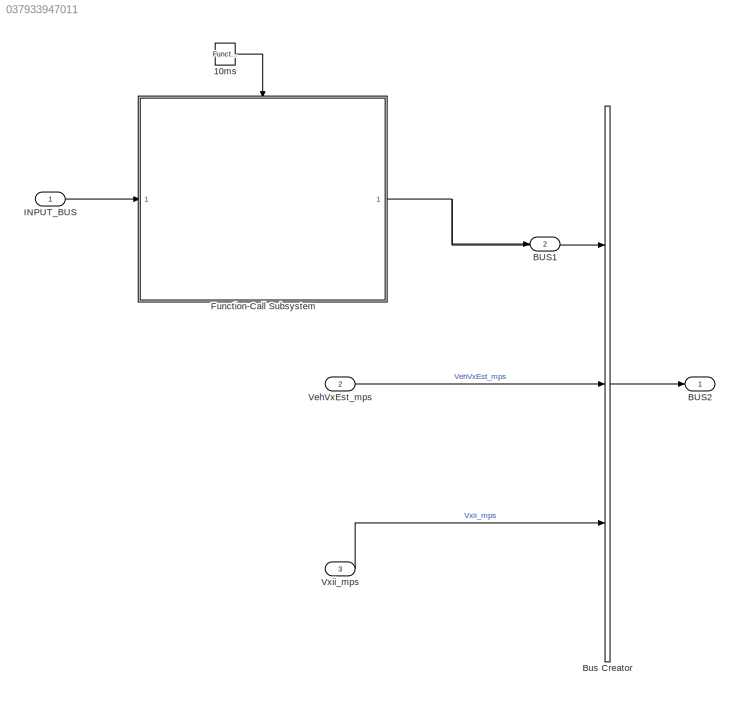
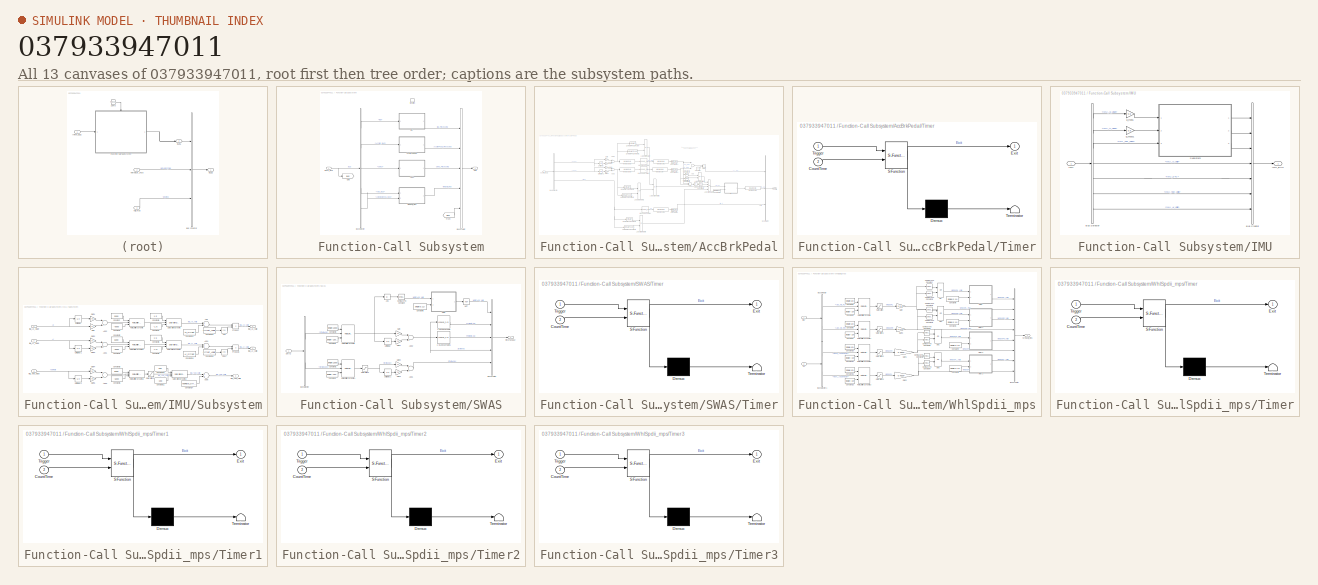
[diagram: thumbnail index - all 13 canvases of the model, root first then tree order]
MODEL slx_037933947011
KIND model
CONFIG AbsTol = auto
CONFIG EnableMultiTasking = off
CONFIG FixedStep = auto
CONFIG MaxStep = auto
CONFIG MinStep = auto
CONFIG RelTol = 1e-3
CONFIG SampleTimeConstraint = Unconstrained
CONFIG Solver = VariableStepAuto
CONFIG SolverName = VariableStepAuto
CONFIG StartTime = 0.0
CONFIG StopTime = 10.0
BLOCK [Reference] 10ms  REF=simulink/Ports &
Subsystems/Function-Call
Generator
  Ports = [0, 1]
  SourceBlock = simulink/Ports &\nSubsystems/Function-Call\nGenerator
  SourceProductBaseCode = SL
  SourceProductName = Simulink
  SourceType = Function-Call Generator
BLOCK [Outport] BUS1
  IconDisplay = Port number
  Port = 2
  VectorParamsAs1DForOutWhenUnconnected = off
BLOCK [Outport] BUS2
  IconDisplay = Port number
  VectorParamsAs1DForOutWhenUnconnected = off
BLOCK [BusCreator] Bus Creator
  DisplayOption = bar
  InheritFromInputs = on
  Inputs = 3
  Ports = [3, 1]
BLOCK [SubSystem] Function-Call Subsystem
  Ports = [1, 1, 0, 1]
  RequestExecContextInheritance = off
  TreatAsAtomicUnit = on
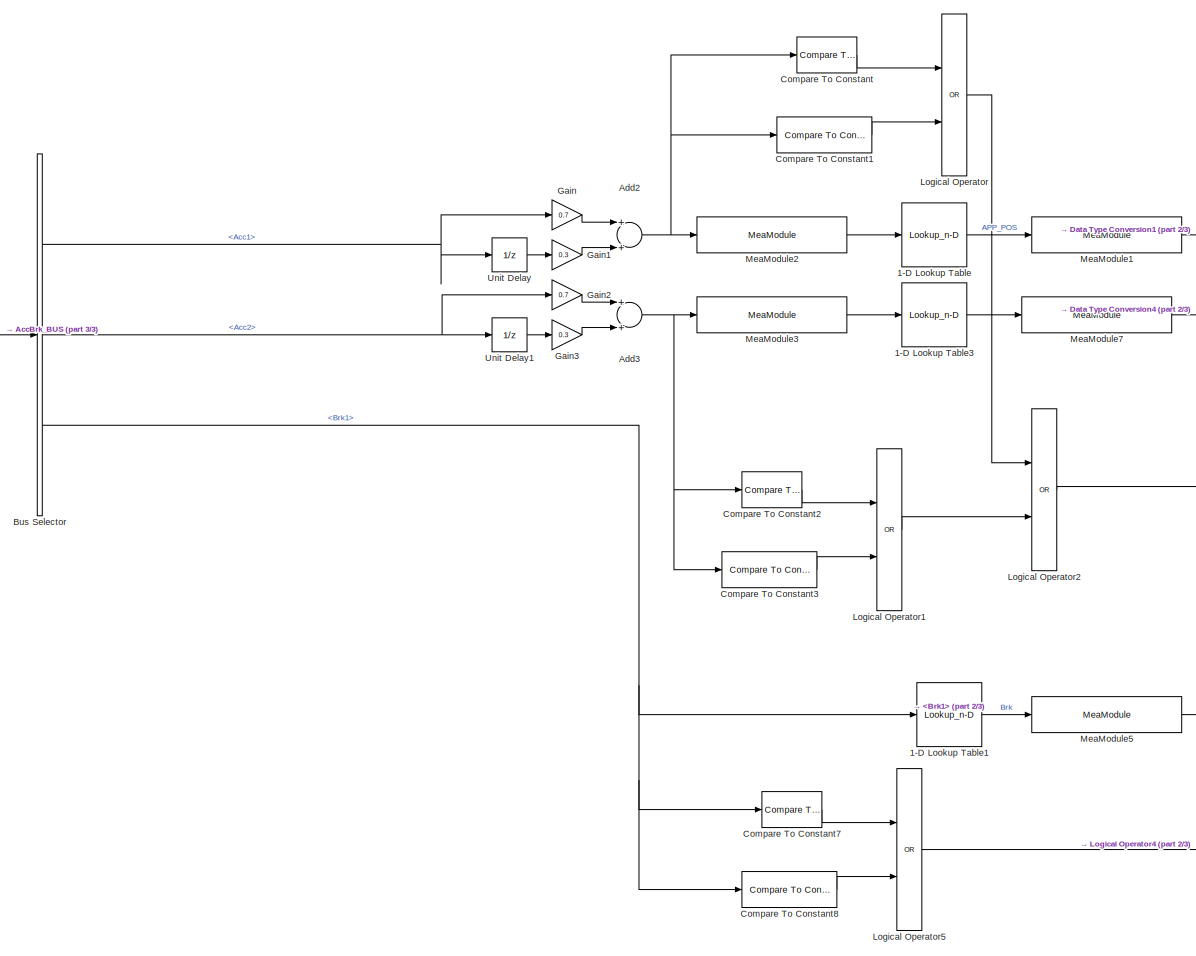
[diagram: Function-Call Subsystem/AccBrkPedal - part 1/3, left side, full height]
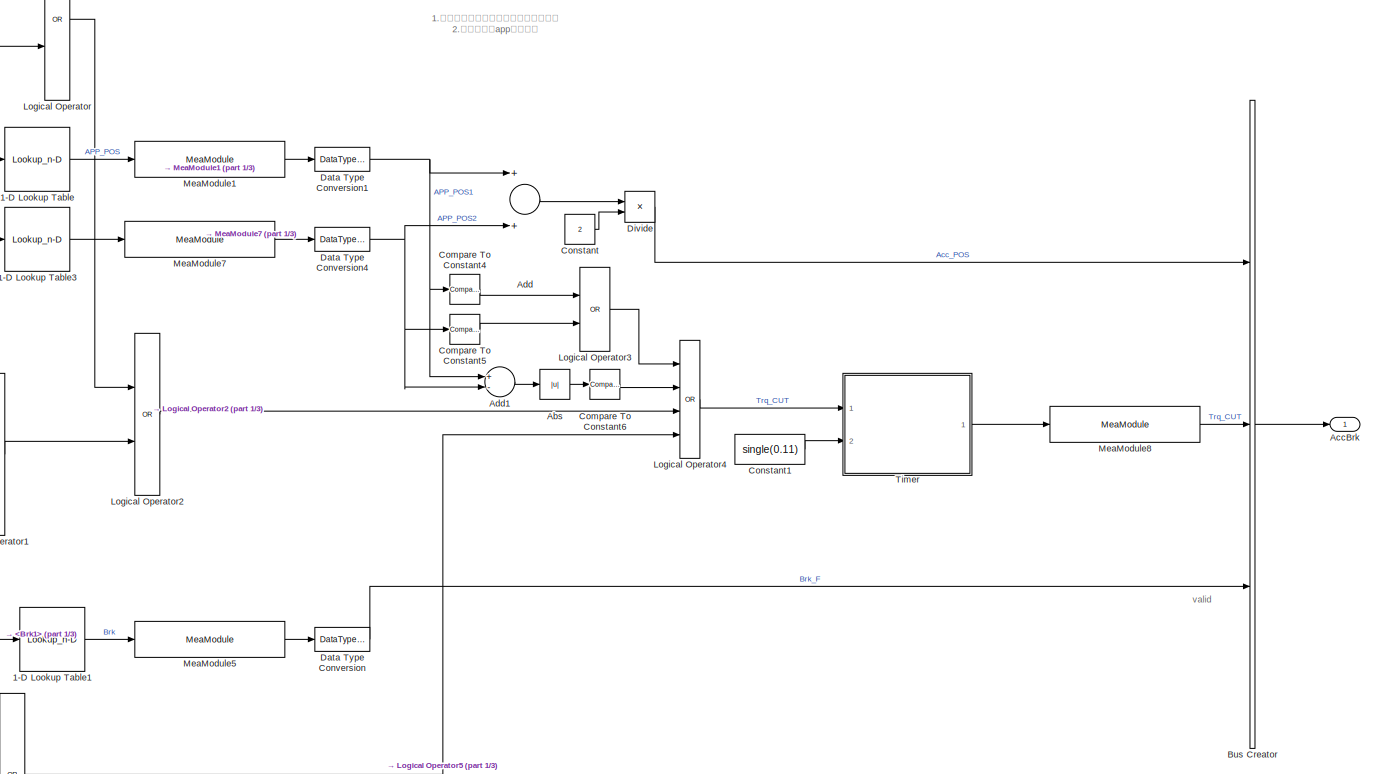
[diagram: Function-Call Subsystem/AccBrkPedal - part 2/3, right side, full height]
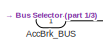
[diagram: Function-Call Subsystem/AccBrkPedal - part 3/3, middle left region]
BLOCK [SubSystem] Function-Call Subsystem/AccBrkPedal
  Ports = [1, 1]
  RequestExecContextInheritance = off
BLOCK [Lookup_n-D] Function-Call Subsystem/AccBrkPedal/1-D Lookup Table
  BreakpointsForDimension1 = single([1330,1590]);
  BreakpointsForDimension1DataTypeStr = single
  ExtrapMethod = Clip
  InternalRulePriority = Speed
  NumberOfTableDimensions = 1
  Ports = [1, 1]
  RndMeth = Simplest
  Table = single([0,100]);
  TableDataTypeStr = single
BLOCK [Lookup_n-D] Function-Call Subsystem/AccBrkPedal/1-D Lookup Table1
  BreakpointsForDimension1 = single([500,4500]);
  BreakpointsForDimension1DataTypeStr = single
  ExtrapMethod = Clip
  InternalRulePriority = Speed
  NumberOfTableDimensions = 1
  Ports = [1, 1]
  RndMeth = Simplest
  Table = single([0,10000]);
  TableDataTypeStr = single
BLOCK [Lookup_n-D] Function-Call Subsystem/AccBrkPedal/1-D Lookup Table3
  BreakpointsForDimension1 = single([2324,2600]);
  BreakpointsForDimension1DataTypeStr = single
  ExtrapMethod = Clip
  InternalRulePriority = Speed
  NumberOfTableDimensions = 1
  Ports = [1, 1]
  RndMeth = Simplest
  Table = single([0,100]);
  TableDataTypeStr = single
BLOCK [Abs] Function-Call Subsystem/AccBrkPedal/Abs
  SaturateOnIntegerOverflow = off
BLOCK [Outport] Function-Call Subsystem/AccBrkPedal/AccBrk
  IconDisplay = Port number
  VectorParamsAs1DForOutWhenUnconnected = off
BLOCK [Inport] Function-Call Subsystem/AccBrkPedal/AccBrk_BUS
  IconDisplay = Port number
BLOCK [Sum] Function-Call Subsystem/AccBrkPedal/Add
  InputSameDT = off
  OutDataTypeStr = Inherit: Inherit via internal rule
  Ports = [2, 1]
  SaturateOnIntegerOverflow = off
BLOCK [Sum] Function-Call Subsystem/AccBrkPedal/Add1
  InputSameDT = off
  Inputs = +-
  OutDataTypeStr = Inherit: Inherit via internal rule
  Ports = [2, 1]
  SaturateOnIntegerOverflow = off
BLOCK [Sum] Function-Call Subsystem/AccBrkPedal/Add2
  InputSameDT = off
  OutDataTypeStr = Inherit: Inherit via internal rule
  Ports = [2, 1]
  SaturateOnIntegerOverflow = off
BLOCK [Sum] Function-Call Subsystem/AccBrkPedal/Add3
  InputSameDT = off
  OutDataTypeStr = Inherit: Inherit via internal rule
  Ports = [2, 1]
  SaturateOnIntegerOverflow = off
BLOCK [BusCreator] Function-Call Subsystem/AccBrkPedal/Bus Creator
  DisplayOption = bar
  InheritFromInputs = on
  Inputs = 3
  Ports = [3, 1]
BLOCK [BusSelector] Function-Call Subsystem/AccBrkPedal/Bus Selector
  OutputAsBus = off
  OutputSignals = Acc1,Acc2,Brk1
  Ports = [1, 3]
BLOCK [Reference] Function-Call Subsystem/AccBrkPedal/Compare To Constant  REF=simulink/Logic and Bit
Operations/Compare
To Constant
  Ports = [1, 1]
  SourceBlock = simulink/Logic and Bit\nOperations/Compare\nTo Constant
  SourceProductBaseCode = SL
  SourceProductName = Simulink
  SourceType = Compare To Constant
BLOCK [Reference] Function-Call Subsystem/AccBrkPedal/Compare To Constant1  REF=simulink/Logic and Bit
Operations/Compare
To Constant
  Ports = [1, 1]
  SourceBlock = simulink/Logic and Bit\nOperations/Compare\nTo Constant
  SourceProductBaseCode = SL
  SourceProductName = Simulink
  SourceType = Compare To Constant
BLOCK [Reference] Function-Call Subsystem/AccBrkPedal/Compare To Constant2  REF=simulink/Logic and Bit
Operations/Compare
To Constant
  Ports = [1, 1]
  SourceBlock = simulink/Logic and Bit\nOperations/Compare\nTo Constant
  SourceProductBaseCode = SL
  SourceProductName = Simulink
  SourceType = Compare To Constant
BLOCK [Reference] Function-Call Subsystem/AccBrkPedal/Compare To Constant3  REF=simulink/Logic and Bit
Operations/Compare
To Constant
  Ports = [1, 1]
  SourceBlock = simulink/Logic and Bit\nOperations/Compare\nTo Constant
  SourceProductBaseCode = SL
  SourceProductName = Simulink
  SourceType = Compare To Constant
BLOCK [Reference] Function-Call Subsystem/AccBrkPedal/Compare To Constant4  REF=simulink/Logic and Bit
Operations/Compare
To Constant
  Ports = [1, 1]
  SourceBlock = simulink/Logic and Bit\nOperations/Compare\nTo Constant
  SourceProductBaseCode = SL
  SourceProductName = Simulink
  SourceType = Compare To Constant
BLOCK [Reference] Function-Call Subsystem/AccBrkPedal/Compare To Constant5  REF=simulink/Logic and Bit
Operations/Compare
To Constant
  Ports = [1, 1]
  SourceBlock = simulink/Logic and Bit\nOperations/Compare\nTo Constant
  SourceProductBaseCode = SL
  SourceProductName = Simulink
  SourceType = Compare To Constant
BLOCK [Reference] Function-Call Subsystem/AccBrkPedal/Compare To Constant6  REF=simulink/Logic and Bit
Operations/Compare
To Constant
  Ports = [1, 1]
  SourceBlock = simulink/Logic and Bit\nOperations/Compare\nTo Constant
  SourceProductBaseCode = SL
  SourceProductName = Simulink
  SourceType = Compare To Constant
BLOCK [Reference] Function-Call Subsystem/AccBrkPedal/Compare To Constant7  REF=simulink/Logic and Bit
Operations/Compare
To Constant
  Ports = [1, 1]
  SourceBlock = simulink/Logic and Bit\nOperations/Compare\nTo Constant
  SourceProductBaseCode = SL
  SourceProductName = Simulink
  SourceType = Compare To Constant
BLOCK [Reference] Function-Call Subsystem/AccBrkPedal/Compare To Constant8  REF=simulink/Logic and Bit
Operations/Compare
To Constant
  Ports = [1, 1]
  SourceBlock = simulink/Logic and Bit\nOperations/Compare\nTo Constant
  SourceProductBaseCode = SL
  SourceProductName = Simulink
  SourceType = Compare To Constant
BLOCK [Constant] Function-Call Subsystem/AccBrkPedal/Constant
  Value = 2
BLOCK [Constant] Function-Call Subsystem/AccBrkPedal/Constant1
  Value = single(0.11)
BLOCK [DataTypeConversion] Function-Call Subsystem/AccBrkPedal/Data Type Conversion
  OutDataTypeStr = single
  RndMeth = Floor
  SaturateOnIntegerOverflow = off
BLOCK [DataTypeConversion] Function-Call Subsystem/AccBrkPedal/Data Type Conversion1
  OutDataTypeStr = single
  RndMeth = Floor
  SaturateOnIntegerOverflow = off
BLOCK [DataTypeConversion] Function-Call Subsystem/AccBrkPedal/Data Type Conversion4
  OutDataTypeStr = single
  RndMeth = Floor
  SaturateOnIntegerOverflow = off
BLOCK [Product] Function-Call Subsystem/AccBrkPedal/Divide
  InputSameDT = off
  Inputs = */
  OutDataTypeStr = single
  Ports = [2, 1]
  RndMeth = Floor
  SaturateOnIntegerOverflow = off
BLOCK [Gain] Function-Call Subsystem/AccBrkPedal/Gain
  Gain = 0.7
  OutDataTypeStr = Inherit: Inherit via internal rule
  ParamDataTypeStr = Inherit: Inherit via internal rule
  SaturateOnIntegerOverflow = off
BLOCK [Gain] Function-Call Subsystem/AccBrkPedal/Gain1
  Gain = 0.3
  OutDataTypeStr = Inherit: Inherit via internal rule
  ParamDataTypeStr = Inherit: Inherit via internal rule
  SaturateOnIntegerOverflow = off
BLOCK [Gain] Function-Call Subsystem/AccBrkPedal/Gain2
  Gain = 0.7
  OutDataTypeStr = Inherit: Inherit via internal rule
  ParamDataTypeStr = Inherit: Inherit via internal rule
  SaturateOnIntegerOverflow = off
BLOCK [Gain] Function-Call Subsystem/AccBrkPedal/Gain3
  Gain = 0.3
  OutDataTypeStr = Inherit: Inherit via internal rule
  ParamDataTypeStr = Inherit: Inherit via internal rule
  SaturateOnIntegerOverflow = off
BLOCK [Logic] Function-Call Subsystem/AccBrkPedal/Logical Operator
  AllPortsSameDT = off
  Operator = OR
  OutDataTypeStr = boolean
  Ports = [2, 1]
BLOCK [Logic] Function-Call Subsystem/AccBrkPedal/Logical Operator1
  AllPortsSameDT = off
  Operator = OR
  OutDataTypeStr = boolean
  Ports = [2, 1]
BLOCK [Logic] Function-Call Subsystem/AccBrkPedal/Logical Operator2
  AllPortsSameDT = off
  Operator = OR
  OutDataTypeStr = boolean
  Ports = [2, 1]
BLOCK [Logic] Function-Call Subsystem/AccBrkPedal/Logical Operator3
  AllPortsSameDT = off
  Operator = OR
  OutDataTypeStr = boolean
  Ports = [2, 1]
BLOCK [Logic] Function-Call Subsystem/AccBrkPedal/Logical Operator4
  AllPortsSameDT = off
  Inputs = 4
  Operator = OR
  OutDataTypeStr = boolean
  Ports = [4, 1]
BLOCK [Logic] Function-Call Subsystem/AccBrkPedal/Logical Operator5
  AllPortsSameDT = off
  Operator = OR
  OutDataTypeStr = boolean
  Ports = [2, 1]
BLOCK [Reference] Function-Call Subsystem/AccBrkPedal/MeaModule1  REF=ec5744lib/RapidECU_U3/07Calibration/MeaModule
  Ports = [1, 1]
  SourceBlock = ec5744lib/RapidECU_U3/07Calibration/MeaModule
  SourceProductName = ECUCoder for MPC5744
  SourceType = Measurement Module
BLOCK [Reference] Function-Call Subsystem/AccBrkPedal/MeaModule2  REF=ec5744lib/RapidECU_U3/07Calibration/MeaModule
  Ports = [1, 1]
  SourceBlock = ec5744lib/RapidECU_U3/07Calibration/MeaModule
  SourceProductName = ECUCoder for MPC5744
  SourceType = Measurement Module
BLOCK [Reference] Function-Call Subsystem/AccBrkPedal/MeaModule3  REF=ec5744lib/RapidECU_U3/07Calibration/MeaModule
  Ports = [1, 1]
  SourceBlock = ec5744lib/RapidECU_U3/07Calibration/MeaModule
  SourceProductName = ECUCoder for MPC5744
  SourceType = Measurement Module
BLOCK [Reference] Function-Call Subsystem/AccBrkPedal/MeaModule5  REF=ec5744lib/RapidECU_U3/07Calibration/MeaModule
  Ports = [1, 1]
  SourceBlock = ec5744lib/RapidECU_U3/07Calibration/MeaModule
  SourceProductName = ECUCoder for MPC5744
  SourceType = Measurement Module
BLOCK [Reference] Function-Call Subsystem/AccBrkPedal/MeaModule7  REF=ec5744lib/RapidECU_U3/07Calibration/MeaModule
  Ports = [1, 1]
  SourceBlock = ec5744lib/RapidECU_U3/07Calibration/MeaModule
  SourceProductName = ECUCoder for MPC5744
  SourceType = Measurement Module
BLOCK [Reference] Function-Call Subsystem/AccBrkPedal/MeaModule8  REF=ec5744lib/RapidECU_U3/07Calibration/MeaModule
  Ports = [1, 1]
  SourceBlock = ec5744lib/RapidECU_U3/07Calibration/MeaModule
  SourceProductName = ECUCoder for MPC5744
  SourceType = Measurement Module
BLOCK [SubSystem] Function-Call Subsystem/AccBrkPedal/Timer
  ErrorFcn = Stateflow.Translate.translate
  PermitHierarchicalResolution = ExplicitOnly
  Ports = [2, 1]
  RequestExecContextInheritance = off
  SFBlockType = Chart
  TreatAsAtomicUnit = on
BLOCK [Demux] Function-Call Subsystem/AccBrkPedal/Timer/ Demux 
  Outputs = 1
  Ports = [1, 1]
BLOCK [S-Function] Function-Call Subsystem/AccBrkPedal/Timer/ SFunction 
  EnableBusSupport = on
  FunctionName = sf_sfun
  Parameters = 0
  PortCounts = [2 2]
  Ports = [2, 2]
  SFcnIsStateOwnerBlock = off
  SFunctionDeploymentMode = off
  Tag = Stateflow S-Function 3
BLOCK [Terminator] Function-Call Subsystem/AccBrkPedal/Timer/ Terminator 
BLOCK [Inport] Function-Call Subsystem/AccBrkPedal/Timer/CountTime
  IconDisplay = Port number
  Port = 2
BLOCK [Outport] Function-Call Subsystem/AccBrkPedal/Timer/Exit
  IconDisplay = Port number
BLOCK [Inport] Function-Call Subsystem/AccBrkPedal/Timer/Trigger
  IconDisplay = Port number
BLOCK [UnitDelay] Function-Call Subsystem/AccBrkPedal/Unit Delay
  HasFrameUpgradeWarning = on
  SampleTime = -1
BLOCK [UnitDelay] Function-Call Subsystem/AccBrkPedal/Unit Delay1
  HasFrameUpgradeWarning = on
  SampleTime = -1
BLOCK [BusCreator] Function-Call Subsystem/Bus Creator
  DisplayOption = bar
  InheritFromInputs = on
  Inputs = 5
  Ports = [5, 1]
BLOCK [BusSelector] Function-Call Subsystem/Bus Selector
  OutputAsBus = off
  OutputSignals = IMU,AccBrk_BUS,SWAS,ABS_BUS,AMKMCUtoVCU_BUS
  Ports = [1, 5]
BLOCK [From] Function-Call Subsystem/From
  GotoTag = BUS
BLOCK [Goto] Function-Call Subsystem/Goto
  GotoTag = BUS
BLOCK [SubSystem] Function-Call Subsystem/IMU
  Ports = [1, 1]
  RequestExecContextInheritance = off
BLOCK [BusCreator] Function-Call Subsystem/IMU/Bus Creator
  DisplayOption = bar
  InheritFromInputs = on
  Inputs = 7
  Ports = [7, 1]
BLOCK [BusSelector] Function-Call Subsystem/IMU/Bus Selector
  OutputAsBus = off
  OutputSignals = IMU_Ax_Value,IMU_Ay_Value,IMU_Yaw_Value,IMU_Ay_Valid,IMU_DTC,IMU_Yaw_Valid,IMU_Ax_Valid
  Ports = [1, 7]
BLOCK [Inport] Function-Call Subsystem/IMU/IMU
  IconDisplay = Port number
BLOCK [Outport] Function-Call Subsystem/IMU/IMU_BUS
  IconDisplay = Port number
  VectorParamsAs1DForOutWhenUnconnected = off
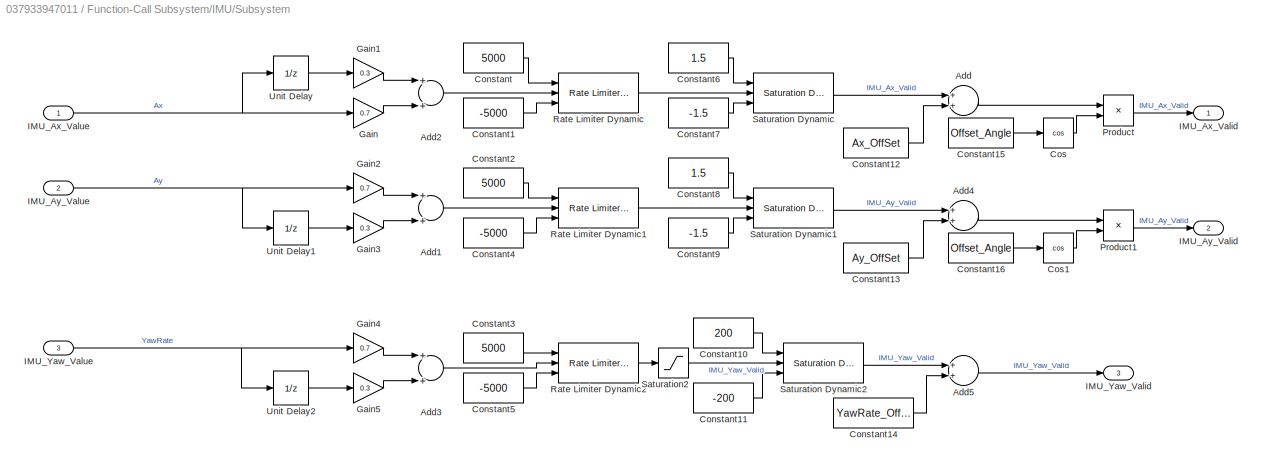
BLOCK [SubSystem] Function-Call Subsystem/IMU/Subsystem
  Ports = [3, 3]
  RequestExecContextInheritance = off
BLOCK [Sum] Function-Call Subsystem/IMU/Subsystem/Add
  InputSameDT = off
  OutDataTypeStr = Inherit: Inherit via internal rule
  Ports = [2, 1]
  SaturateOnIntegerOverflow = off
BLOCK [Sum] Function-Call Subsystem/IMU/Subsystem/Add1
  InputSameDT = off
  OutDataTypeStr = Inherit: Inherit via internal rule
  Ports = [2, 1]
  SaturateOnIntegerOverflow = off
BLOCK [Sum] Function-Call Subsystem/IMU/Subsystem/Add2
  InputSameDT = off
  OutDataTypeStr = Inherit: Inherit via internal rule
  Ports = [2, 1]
  SaturateOnIntegerOverflow = off
BLOCK [Sum] Function-Call Subsystem/IMU/Subsystem/Add3
  InputSameDT = off
  OutDataTypeStr = Inherit: Inherit via internal rule
  Ports = [2, 1]
  SaturateOnIntegerOverflow = off
BLOCK [Sum] Function-Call Subsystem/IMU/Subsystem/Add4
  InputSameDT = off
  OutDataTypeStr = Inherit: Inherit via internal rule
  Ports = [2, 1]
  SaturateOnIntegerOverflow = off
BLOCK [Sum] Function-Call Subsystem/IMU/Subsystem/Add5
  InputSameDT = off
  OutDataTypeStr = Inherit: Inherit via internal rule
  Ports = [2, 1]
  SaturateOnIntegerOverflow = off
BLOCK [Constant] Function-Call Subsystem/IMU/Subsystem/Constant
  Value = 5000
BLOCK [Constant] Function-Call Subsystem/IMU/Subsystem/Constant1
  Value = -5000
BLOCK [Constant] Function-Call Subsystem/IMU/Subsystem/Constant10
  SampleTime = -1
  Value = 200
BLOCK [Constant] Function-Call Subsystem/IMU/Subsystem/Constant11
  SampleTime = -1
  Value = -200
BLOCK [Constant] Function-Call Subsystem/IMU/Subsystem/Constant12
  Value = Ax_OffSet
BLOCK [Constant] Function-Call Subsystem/IMU/Subsystem/Constant13
  Value = Ay_OffSet
BLOCK [Constant] Function-Call Subsystem/IMU/Subsystem/Constant14
  Value = YawRate_OffSet
BLOCK [Constant] Function-Call Subsystem/IMU/Subsystem/Constant15
  Value = Offset_Angle
BLOCK [Constant] Function-Call Subsystem/IMU/Subsystem/Constant16
  Value = Offset_Angle
BLOCK [Constant] Function-Call Subsystem/IMU/Subsystem/Constant2
  Value = 5000
BLOCK [Constant] Function-Call Subsystem/IMU/Subsystem/Constant3
  Value = 5000
BLOCK [Constant] Function-Call Subsystem/IMU/Subsystem/Constant4
  Value = -5000
BLOCK [Constant] Function-Call Subsystem/IMU/Subsystem/Constant5
  Value = -5000
BLOCK [Constant] Function-Call Subsystem/IMU/Subsystem/Constant6
  SampleTime = -1
  Value = 1.5
BLOCK [Constant] Function-Call Subsystem/IMU/Subsystem/Constant7
  SampleTime = -1
  Value = -1.5
BLOCK [Constant] Function-Call Subsystem/IMU/Subsystem/Constant8
  SampleTime = -1
  Value = 1.5
BLOCK [Constant] Function-Call Subsystem/IMU/Subsystem/Constant9
  SampleTime = -1
  Value = -1.5
BLOCK [Trigonometry] Function-Call Subsystem/IMU/Subsystem/Cos
  Operator = cos
  Ports = [1, 1]
BLOCK [Trigonometry] Function-Call Subsystem/IMU/Subsystem/Cos1
  Operator = cos
  Ports = [1, 1]
BLOCK [Gain] Function-Call Subsystem/IMU/Subsystem/Gain
  Gain = 0.7
  OutDataTypeStr = Inherit: Inherit via internal rule
  ParamDataTypeStr = Inherit: Inherit via internal rule
  SaturateOnIntegerOverflow = off
BLOCK [Gain] Function-Call Subsystem/IMU/Subsystem/Gain1
  Gain = 0.3
  OutDataTypeStr = Inherit: Inherit via internal rule
  ParamDataTypeStr = Inherit: Inherit via internal rule
  SaturateOnIntegerOverflow = off
BLOCK [Gain] Function-Call Subsystem/IMU/Subsystem/Gain2
  Gain = 0.7
  OutDataTypeStr = Inherit: Inherit via internal rule
  ParamDataTypeStr = Inherit: Inherit via internal rule
  SaturateOnIntegerOverflow = off
BLOCK [Gain] Function-Call Subsystem/IMU/Subsystem/Gain3
  Gain = 0.3
  OutDataTypeStr = Inherit: Inherit via internal rule
  ParamDataTypeStr = Inherit: Inherit via internal rule
  SaturateOnIntegerOverflow = off
BLOCK [Gain] Function-Call Subsystem/IMU/Subsystem/Gain4
  Gain = 0.7
  OutDataTypeStr = Inherit: Inherit via internal rule
  ParamDataTypeStr = Inherit: Inherit via internal rule
  SaturateOnIntegerOverflow = off
BLOCK [Gain] Function-Call Subsystem/IMU/Subsystem/Gain5
  Gain = 0.3
  OutDataTypeStr = Inherit: Inherit via internal rule
  ParamDataTypeStr = Inherit: Inherit via internal rule
  SaturateOnIntegerOverflow = off
BLOCK [Outport] Function-Call Subsystem/IMU/Subsystem/IMU_Ax_Valid
  IconDisplay = Port number
  VectorParamsAs1DForOutWhenUnconnected = off
BLOCK [Inport] Function-Call Subsystem/IMU/Subsystem/IMU_Ax_Value
  IconDisplay = Port number
BLOCK [Outport] Function-Call Subsystem/IMU/Subsystem/IMU_Ay_Valid
  IconDisplay = Port number
  Port = 2
  VectorParamsAs1DForOutWhenUnconnected = off
BLOCK [Inport] Function-Call Subsystem/IMU/Subsystem/IMU_Ay_Value
  IconDisplay = Port number
  Port = 2
BLOCK [Outport] Function-Call Subsystem/IMU/Subsystem/IMU_Yaw_Valid
  IconDisplay = Port number
  Port = 3
  VectorParamsAs1DForOutWhenUnconnected = off
BLOCK [Inport] Function-Call Subsystem/IMU/Subsystem/IMU_Yaw_Value
  IconDisplay = Port number
  Port = 3
BLOCK [Product] Function-Call Subsystem/IMU/Subsystem/Product
  InputSameDT = off
  OutDataTypeStr = Inherit: Inherit via internal rule
  Ports = [2, 1]
  RndMeth = Floor
  SaturateOnIntegerOverflow = off
BLOCK [Product] Function-Call Subsystem/IMU/Subsystem/Product1
  InputSameDT = off
  OutDataTypeStr = Inherit: Inherit via internal rule
  Ports = [2, 1]
  RndMeth = Floor
  SaturateOnIntegerOverflow = off
BLOCK [Reference] Function-Call Subsystem/IMU/Subsystem/Rate Limiter Dynamic  REF=simulink/Discontinuities/Rate Limiter
Dynamic
  Ports = [3, 1]
  SourceBlock = simulink/Discontinuities/Rate Limiter\nDynamic
  SourceProductBaseCode = SL
  SourceProductName = Simulink
  SourceType = Rate Limiter Dynamic
BLOCK [Reference] Function-Call Subsystem/IMU/Subsystem/Rate Limiter Dynamic1  REF=simulink/Discontinuities/Rate Limiter
Dynamic
  Ports = [3, 1]
  SourceBlock = simulink/Discontinuities/Rate Limiter\nDynamic
  SourceProductBaseCode = SL
  SourceProductName = Simulink
  SourceType = Rate Limiter Dynamic
BLOCK [Reference] Function-Call Subsystem/IMU/Subsystem/Rate Limiter Dynamic2  REF=simulink/Discontinuities/Rate Limiter
Dynamic
  Ports = [3, 1]
  SourceBlock = simulink/Discontinuities/Rate Limiter\nDynamic
  SourceProductBaseCode = SL
  SourceProductName = Simulink
  SourceType = Rate Limiter Dynamic
BLOCK [Reference] Function-Call Subsystem/IMU/Subsystem/Saturation Dynamic  REF=simulink/Discontinuities/Saturation
Dynamic
  Ports = [3, 1]
  SourceBlock = simulink/Discontinuities/Saturation\nDynamic
  SourceProductBaseCode = SL
  SourceProductName = Simulink
  SourceType = Saturation Dynamic
BLOCK [Reference] Function-Call Subsystem/IMU/Subsystem/Saturation Dynamic1  REF=simulink/Discontinuities/Saturation
Dynamic
  Ports = [3, 1]
  SourceBlock = simulink/Discontinuities/Saturation\nDynamic
  SourceProductBaseCode = SL
  SourceProductName = Simulink
  SourceType = Saturation Dynamic
BLOCK [Reference] Function-Call Subsystem/IMU/Subsystem/Saturation Dynamic2  REF=simulink/Discontinuities/Saturation
Dynamic
  Ports = [3, 1]
  SourceBlock = simulink/Discontinuities/Saturation\nDynamic
  SourceProductBaseCode = SL
  SourceProductName = Simulink
  SourceType = Saturation Dynamic
BLOCK [Saturate] Function-Call Subsystem/IMU/Subsystem/Saturation2
  InputPortMap = u0
  LowerLimit = -180
  Ports = [1, 1]
  UpperLimit = 180
BLOCK [UnitDelay] Function-Call Subsystem/IMU/Subsystem/Unit Delay
  HasFrameUpgradeWarning = on
  SampleTime = -1
BLOCK [UnitDelay] Function-Call Subsystem/IMU/Subsystem/Unit Delay1
  HasFrameUpgradeWarning = on
  SampleTime = -1
BLOCK [UnitDelay] Function-Call Subsystem/IMU/Subsystem/Unit Delay2
  HasFrameUpgradeWarning = on
  SampleTime = -1
BLOCK [Gain] Function-Call Subsystem/IMU/g_mpss
  Gain = 9.8
  OutDataTypeStr = Inherit: Inherit via internal rule
  ParamDataTypeStr = Inherit: Inherit via internal rule
  SaturateOnIntegerOverflow = off
BLOCK [Gain] Function-Call Subsystem/IMU/g_mpss1
  Gain = 9.8
  OutDataTypeStr = Inherit: Inherit via internal rule
  ParamDataTypeStr = Inherit: Inherit via internal rule
  SaturateOnIntegerOverflow = off
BLOCK [Inport] Function-Call Subsystem/INPUT_BUS
  IconDisplay = Port number
BLOCK [Outport] Function-Call Subsystem/Out1
  IconDisplay = Port number
  VectorParamsAs1DForOutWhenUnconnected = off
BLOCK [SubSystem] Function-Call Subsystem/SWAS
  Ports = [1, 1]
  RequestExecContextInheritance = off
BLOCK [Lookup_n-D] Function-Call Subsystem/SWAS/1-D Lookup Table
  BreakpointsForDimension1 = single([-119.993\n-109.997\n-100\n-90.0034\n-80.0067\n-69.9933\n-59.9966\n-50\n-40.0034\n-30.0067\n-19.9933\n-9.99664\n0\n9.99664\n19.9933\n30.0067\n40.0034\n50\n59.9966\n69.9933\n80.0067\n90.0034\n100\n109.997\n]);
  InternalRulePriority = Speed
  NumberOfTableDimensions = 1
  Ports = [1, 1]
  RndMeth = Simplest
  Table = single([-26.072928\n-23.62248\n-20.834568\n-18.002448\n-15.197904\n-12.620232\n-10.131048\n-8.139672\n-6.2976672\n-4.605012\n-3.0893688\n-1.4907528\n-0.07467624\n1.40778\n2.9621448\n4.7211768\n6.5521152\n8.737056\n10.944144\n13.743144\n17.25012\n20.375424\n24.070536\n27.505584\n]);
BLOCK [Lookup_n-D] Function-Call Subsystem/SWAS/1-D Lookup Table1
  BreakpointsForDimension1 = single([-119.995\n-109.993\n-99.9916\n-90.0067\n-80.005\n-70.0034\n-60.0017\n-50\n-39.9983\n-29.9966\n-19.995\n-9.99328\n0.00840477\n9.99328\n19.995\n29.9966\n39.9983\n50\n60.0017\n70.0034\n80.005\n90.0067\n100.008\n109.993\n]);
  InternalRulePriority = Speed
  NumberOfTableDimensions = 1
  Ports = [1, 1]
  RndMeth = Simplest
  Table = single([-26.816256\n-23.524848\n-19.851048\n-16.282584\n-13.40676\n-10.314792\n-7.65504\n-5.3554968\n-3.4548912\n-1.5044184\n0.02493504\n1.4379192\n2.8675296\n4.2638976\n5.76\n7.35588\n9.101304\n11.04624\n12.94128\n15.35724\n18.244152\n20.937168\n23.630112\n26.306496\n]);
BLOCK [Abs] Function-Call Subsystem/SWAS/Abs
  SaturateOnIntegerOverflow = off
BLOCK [Sum] Function-Call Subsystem/SWAS/Add1
  InputSameDT = off
  OutDataTypeStr = Inherit: Inherit via internal rule
  Ports = [2, 1]
  SaturateOnIntegerOverflow = off
BLOCK [Sum] Function-Call Subsystem/SWAS/Add2
  InputSameDT = off
  OutDataTypeStr = Inherit: Inherit via internal rule
  Ports = [2, 1]
  SaturateOnIntegerOverflow = off
BLOCK [BusCreator] Function-Call Subsystem/SWAS/Bus Creator
  DisplayOption = bar
  InheritFromInputs = on
  Inputs = 5
  Ports = [5, 1]
BLOCK [BusSelector] Function-Call Subsystem/SWAS/Bus Selector
  OutputAsBus = off
  OutputSignals = StrWhlAng,StrWhlAngV
  Ports = [1, 2]
BLOCK [Reference] Function-Call Subsystem/SWAS/Compare To Constant  REF=simulink/Logic and Bit
Operations/Compare
To Constant
  Ports = [1, 1]
  SourceBlock = simulink/Logic and Bit\nOperations/Compare\nTo Constant
  SourceProductBaseCode = SL
  SourceProductName = Simulink
  SourceType = Compare To Constant
BLOCK [Constant] Function-Call Subsystem/SWAS/Constant1
  Value = single(1200)
BLOCK [Constant] Function-Call Subsystem/SWAS/Constant2
  Value = single(1200)
BLOCK [Constant] Function-Call Subsystem/SWAS/Constant3
  Value = single(-1200)
BLOCK [Constant] Function-Call Subsystem/SWAS/Constant4
  Value = single(-1200)
BLOCK [Constant] Function-Call Subsystem/SWAS/Constant5
  Value = single(0.11)
BLOCK [Gain] Function-Call Subsystem/SWAS/Gain
  Gain = 0.7
  OutDataTypeStr = Inherit: Inherit via internal rule
  ParamDataTypeStr = Inherit: Inherit via internal rule
  SaturateOnIntegerOverflow = off
BLOCK [Gain] Function-Call Subsystem/SWAS/Gain1
  Gain = 0.3
  OutDataTypeStr = Inherit: Inherit via internal rule
  ParamDataTypeStr = Inherit: Inherit via internal rule
  SaturateOnIntegerOverflow = off
BLOCK [Gain] Function-Call Subsystem/SWAS/Gain2
  Gain = 0.7
  OutDataTypeStr = Inherit: Inherit via internal rule
  ParamDataTypeStr = Inherit: Inherit via internal rule
  SaturateOnIntegerOverflow = off
BLOCK [Gain] Function-Call Subsystem/SWAS/Gain3
  Gain = 0.3
  OutDataTypeStr = Inherit: Inherit via internal rule
  ParamDataTypeStr = Inherit: Inherit via internal rule
  SaturateOnIntegerOverflow = off
BLOCK [Logic] Function-Call Subsystem/SWAS/NOT
  AllPortsSameDT = off
  Operator = NOT
  OutDataTypeStr = boolean
  Ports = [1, 1]
BLOCK [Reference] Function-Call Subsystem/SWAS/Rate Limiter Dynamic  REF=simulink/Discontinuities/Rate Limiter
Dynamic
  Ports = [3, 1]
  SourceBlock = simulink/Discontinuities/Rate Limiter\nDynamic
  SourceProductBaseCode = SL
  SourceProductName = Simulink
  SourceType = Rate Limiter Dynamic
BLOCK [Reference] Function-Call Subsystem/SWAS/Rate Limiter Dynamic1  REF=simulink/Discontinuities/Rate Limiter
Dynamic
  Ports = [3, 1]
  SourceBlock = simulink/Discontinuities/Rate Limiter\nDynamic
  SourceProductBaseCode = SL
  SourceProductName = Simulink
  SourceType = Rate Limiter Dynamic
BLOCK [Inport] Function-Call Subsystem/SWAS/SWAS
  IconDisplay = Port number
BLOCK [Saturate] Function-Call Subsystem/SWAS/Saturation1
  InputPortMap = u0
  LowerLimit = 0
  Ports = [1, 1]
  UpperLimit = 1200
BLOCK [Outport] Function-Call Subsystem/SWAS/StrWhlAng&V
  IconDisplay = Port number
  VectorParamsAs1DForOutWhenUnconnected = off
BLOCK [SubSystem] Function-Call Subsystem/SWAS/Timer
  ErrorFcn = Stateflow.Translate.translate
  PermitHierarchicalResolution = ExplicitOnly
  Ports = [2, 1]
  RequestExecContextInheritance = off
  SFBlockType = Chart
  TreatAsAtomicUnit = on
BLOCK [Demux] Function-Call Subsystem/SWAS/Timer/ Demux 
  Outputs = 1
  Ports = [1, 1]
BLOCK [S-Function] Function-Call Subsystem/SWAS/Timer/ SFunction 
  EnableBusSupport = on
  FunctionName = sf_sfun
  Parameters = 0
  PortCounts = [2 2]
  Ports = [2, 2]
  SFcnIsStateOwnerBlock = off
  SFunctionDeploymentMode = off
  Tag = Stateflow S-Function 8
BLOCK [Terminator] Function-Call Subsystem/SWAS/Timer/ Terminator 
BLOCK [Inport] Function-Call Subsystem/SWAS/Timer/CountTime
  IconDisplay = Port number
  Port = 2
BLOCK [Outport] Function-Call Subsystem/SWAS/Timer/Exit
  IconDisplay = Port number
BLOCK [Inport] Function-Call Subsystem/SWAS/Timer/Trigger
  IconDisplay = Port number
BLOCK [UnitDelay] Function-Call Subsystem/SWAS/Unit Delay
  HasFrameUpgradeWarning = on
  SampleTime = -1
BLOCK [UnitDelay] Function-Call Subsystem/SWAS/Unit Delay1
  HasFrameUpgradeWarning = on
  SampleTime = -1
BLOCK [SubSystem] Function-Call Subsystem/WhlSpdii_mps
  Ports = [2, 1]
  RequestExecContextInheritance = off
BLOCK [BusCreator] Function-Call Subsystem/WhlSpdii_mps/Bus Creator
  DisplayOption = bar
  InheritFromInputs = on
  Inputs = 8
  Ports = [8, 1]
BLOCK [BusSelector] Function-Call Subsystem/WhlSpdii_mps/Bus Selector
  OutputAsBus = off
  OutputSignals = ABS_WS_RL,ABS_WS_RR
  Ports = [1, 2]
BLOCK [BusSelector] Function-Call Subsystem/WhlSpdii_mps/Bus Selector1
  OutputAsBus = off
  OutputSignals = FRAMKMCUtoVCU1.MCFR_ActualVelocity,FLAMKMCUtoVCU1.MCFL_ActualVelocity
  Ports = [1, 2]
BLOCK [Reference] Function-Call Subsystem/WhlSpdii_mps/Compare To Constant  REF=simulink/Logic and Bit
Operations/Compare
To Constant
  Ports = [1, 1]
  SourceBlock = simulink/Logic and Bit\nOperations/Compare\nTo Constant
  SourceProductBaseCode = SL
  SourceProductName = Simulink
  SourceType = Compare To Constant
BLOCK [Reference] Function-Call Subsystem/WhlSpdii_mps/Compare To Constant1  REF=simulink/Logic and Bit
Operations/Compare
To Constant
  Ports = [1, 1]
  SourceBlock = simulink/Logic and Bit\nOperations/Compare\nTo Constant
  SourceProductBaseCode = SL
  SourceProductName = Simulink
  SourceType = Compare To Constant
BLOCK [Reference] Function-Call Subsystem/WhlSpdii_mps/Compare To Constant2  REF=simulink/Logic and Bit
Operations/Compare
To Constant
  Ports = [1, 1]
  SourceBlock = simulink/Logic and Bit\nOperations/Compare\nTo Constant
  SourceProductBaseCode = SL
  SourceProductName = Simulink
  SourceType = Compare To Constant
BLOCK [Reference] Function-Call Subsystem/WhlSpdii_mps/Compare To Constant3  REF=simulink/Logic and Bit
Operations/Compare
To Constant
  Ports = [1, 1]
  SourceBlock = simulink/Logic and Bit\nOperations/Compare\nTo Constant
  SourceProductBaseCode = SL
  SourceProductName = Simulink
  SourceType = Compare To Constant
BLOCK [Reference] Function-Call Subsystem/WhlSpdii_mps/Compare To Constant4  REF=simulink/Logic and Bit
Operations/Compare
To Constant
  Ports = [1, 1]
  SourceBlock = simulink/Logic and Bit\nOperations/Compare\nTo Constant
  SourceProductBaseCode = SL
  SourceProductName = Simulink
  SourceType = Compare To Constant
BLOCK [Reference] Function-Call Subsystem/WhlSpdii_mps/Compare To Constant5  REF=simulink/Logic and Bit
Operations/Compare
To Constant
  Ports = [1, 1]
  SourceBlock = simulink/Logic and Bit\nOperations/Compare\nTo Constant
  SourceProductBaseCode = SL
  SourceProductName = Simulink
  SourceType = Compare To Constant
BLOCK [Reference] Function-Call Subsystem/WhlSpdii_mps/Compare To Constant6  REF=simulink/Logic and Bit
Operations/Compare
To Constant
  Ports = [1, 1]
  SourceBlock = simulink/Logic and Bit\nOperations/Compare\nTo Constant
  SourceProductBaseCode = SL
  SourceProductName = Simulink
  SourceType = Compare To Constant
BLOCK [Reference] Function-Call Subsystem/WhlSpdii_mps/Compare To Constant7  REF=simulink/Logic and Bit
Operations/Compare
To Constant
  Ports = [1, 1]
  SourceBlock = simulink/Logic and Bit\nOperations/Compare\nTo Constant
  SourceProductBaseCode = SL
  SourceProductName = Simulink
  SourceType = Compare To Constant
BLOCK [Constant] Function-Call Subsystem/WhlSpdii_mps/Constant1
  Value = single(0.11)
BLOCK [Constant] Function-Call Subsystem/WhlSpdii_mps/Constant10
  Value = single(10)
BLOCK [Constant] Function-Call Subsystem/WhlSpdii_mps/Constant11
  Value = single(-10)
BLOCK [Constant] Function-Call Subsystem/WhlSpdii_mps/Constant12
  Value = single(10)
BLOCK [Constant] Function-Call Subsystem/WhlSpdii_mps/Constant13
  Value = single(-10)
BLOCK [Constant] Function-Call Subsystem/WhlSpdii_mps/Constant2
  Value = single(10)
BLOCK [Constant] Function-Call Subsystem/WhlSpdii_mps/Constant3
  Value = single(-10)
BLOCK [Constant] Function-Call Subsystem/WhlSpdii_mps/Constant4
  Value = single(0.11)
BLOCK [Constant] Function-Call Subsystem/WhlSpdii_mps/Constant5
  Value = single(0.11)
BLOCK [Constant] Function-Call Subsystem/WhlSpdii_mps/Constant6
  Value = single(10)
BLOCK [Constant] Function-Call Subsystem/WhlSpdii_mps/Constant7
  Value = single(-10)
BLOCK [Constant] Function-Call Subsystem/WhlSpdii_mps/Constant8
  Value = single(0.11)
BLOCK [Gain] Function-Call Subsystem/WhlSpdii_mps/Gain
  Gain = 1/3.6
  OutDataTypeStr = Inherit: Inherit via internal rule
  ParamDataTypeStr = Inherit: Inherit via internal rule
  SaturateOnIntegerOverflow = off
BLOCK [Gain] Function-Call Subsystem/WhlSpdii_mps/Gain1
  Gain = 0.4826*3.14/11.3
  OutDataTypeStr = Inherit: Inherit via internal rule
  ParamDataTypeStr = Inherit: Inherit via internal rule
  SaturateOnIntegerOverflow = off
BLOCK [Gain] Function-Call Subsystem/WhlSpdii_mps/Gain2
  Gain = 0.4826*3.14/11.3
  OutDataTypeStr = Inherit: Inherit via internal rule
  ParamDataTypeStr = Inherit: Inherit via internal rule
  SaturateOnIntegerOverflow = off
BLOCK [Gain] Function-Call Subsystem/WhlSpdii_mps/Gain3
  Gain = 1/3.6
  OutDataTypeStr = Inherit: Inherit via internal rule
  ParamDataTypeStr = Inherit: Inherit via internal rule
  SaturateOnIntegerOverflow = off
BLOCK [Inport] Function-Call Subsystem/WhlSpdii_mps/IMU
  IconDisplay = Port number
BLOCK [Inport] Function-Call Subsystem/WhlSpdii_mps/In2
  IconDisplay = Port number
  Port = 2
BLOCK [Logic] Function-Call Subsystem/WhlSpdii_mps/OR
  AllPortsSameDT = off
  Operator = OR
  OutDataTypeStr = boolean
  Ports = [2, 1]
BLOCK [Logic] Function-Call Subsystem/WhlSpdii_mps/OR1
  AllPortsSameDT = off
  Operator = OR
  OutDataTypeStr = boolean
  Ports = [2, 1]
BLOCK [Logic] Function-Call Subsystem/WhlSpdii_mps/OR2
  AllPortsSameDT = off
  Operator = OR
  OutDataTypeStr = boolean
  Ports = [2, 1]
BLOCK [Logic] Function-Call Subsystem/WhlSpdii_mps/OR3
  AllPortsSameDT = off
  Operator = OR
  OutDataTypeStr = boolean
  Ports = [2, 1]
BLOCK [Reference] Function-Call Subsystem/WhlSpdii_mps/Rate Limiter Dynamic  REF=simulink/Discontinuities/Rate Limiter
Dynamic
  Ports = [3, 1]
  SourceBlock = simulink/Discontinuities/Rate Limiter\nDynamic
  SourceProductBaseCode = SL
  SourceProductName = Simulink
  SourceType = Rate Limiter Dynamic
BLOCK [Reference] Function-Call Subsystem/WhlSpdii_mps/Rate Limiter Dynamic1  REF=simulink/Discontinuities/Rate Limiter
Dynamic
  Ports = [3, 1]
  SourceBlock = simulink/Discontinuities/Rate Limiter\nDynamic
  SourceProductBaseCode = SL
  SourceProductName = Simulink
  SourceType = Rate Limiter Dynamic
BLOCK [Reference] Function-Call Subsystem/WhlSpdii_mps/Rate Limiter Dynamic2  REF=simulink/Discontinuities/Rate Limiter
Dynamic
  Ports = [3, 1]
  SourceBlock = simulink/Discontinuities/Rate Limiter\nDynamic
  SourceProductBaseCode = SL
  SourceProductName = Simulink
  SourceType = Rate Limiter Dynamic
BLOCK [Reference] Function-Call Subsystem/WhlSpdii_mps/Rate Limiter Dynamic3  REF=simulink/Discontinuities/Rate Limiter
Dynamic
  Ports = [3, 1]
  SourceBlock = simulink/Discontinuities/Rate Limiter\nDynamic
  SourceProductBaseCode = SL
  SourceProductName = Simulink
  SourceType = Rate Limiter Dynamic
BLOCK [Saturate] Function-Call Subsystem/WhlSpdii_mps/Saturation
  InputPortMap = u0
  LowerLimit = 0
  Ports = [1, 1]
  UpperLimit = 30
BLOCK [Saturate] Function-Call Subsystem/WhlSpdii_mps/Saturation1
  InputPortMap = u0
  LowerLimit = 0
  Ports = [1, 1]
  UpperLimit = 30
BLOCK [Saturate] Function-Call Subsystem/WhlSpdii_mps/Saturation2
  InputPortMap = u0
  LowerLimit = 0
  Ports = [1, 1]
  UpperLimit = 30
BLOCK [Saturate] Function-Call Subsystem/WhlSpdii_mps/Saturation3
  InputPortMap = u0
  LowerLimit = 0
  Ports = [1, 1]
  UpperLimit = 30
BLOCK [SubSystem] Function-Call Subsystem/WhlSpdii_mps/Timer
  ErrorFcn = Stateflow.Translate.translate
  PermitHierarchicalResolution = ExplicitOnly
  Ports = [2, 1]
  RequestExecContextInheritance = off
  SFBlockType = Chart
  TreatAsAtomicUnit = on
BLOCK [Demux] Function-Call Subsystem/WhlSpdii_mps/Timer/ Demux 
  Outputs = 1
  Ports = [1, 1]
BLOCK [S-Function] Function-Call Subsystem/WhlSpdii_mps/Timer/ SFunction 
  EnableBusSupport = on
  FunctionName = sf_sfun
  Parameters = 0
  PortCounts = [2 2]
  Ports = [2, 2]
  SFcnIsStateOwnerBlock = off
  SFunctionDeploymentMode = off
  Tag = Stateflow S-Function 9
BLOCK [Terminator] Function-Call Subsystem/WhlSpdii_mps/Timer/ Terminator 
BLOCK [Inport] Function-Call Subsystem/WhlSpdii_mps/Timer/CountTime
  IconDisplay = Port number
  Port = 2
BLOCK [Outport] Function-Call Subsystem/WhlSpdii_mps/Timer/Exit
  IconDisplay = Port number
BLOCK [Inport] Function-Call Subsystem/WhlSpdii_mps/Timer/Trigger
  IconDisplay = Port number
BLOCK [SubSystem] Function-Call Subsystem/WhlSpdii_mps/Timer1
  ErrorFcn = Stateflow.Translate.translate
  PermitHierarchicalResolution = ExplicitOnly
  Ports = [2, 1]
  RequestExecContextInheritance = off
  SFBlockType = Chart
  TreatAsAtomicUnit = on
BLOCK [Demux] Function-Call Subsystem/WhlSpdii_mps/Timer1/ Demux 
  Outputs = 1
  Ports = [1, 1]
BLOCK [S-Function] Function-Call Subsystem/WhlSpdii_mps/Timer1/ SFunction 
  EnableBusSupport = on
  FunctionName = sf_sfun
  Parameters = 0
  PortCounts = [2 2]
  Ports = [2, 2]
  SFcnIsStateOwnerBlock = off
  SFunctionDeploymentMode = off
  Tag = Stateflow S-Function 10
BLOCK [Terminator] Function-Call Subsystem/WhlSpdii_mps/Timer1/ Terminator 
BLOCK [Inport] Function-Call Subsystem/WhlSpdii_mps/Timer1/CountTime
  IconDisplay = Port number
  Port = 2
BLOCK [Outport] Function-Call Subsystem/WhlSpdii_mps/Timer1/Exit
  IconDisplay = Port number
BLOCK [Inport] Function-Call Subsystem/WhlSpdii_mps/Timer1/Trigger
  IconDisplay = Port number
BLOCK [SubSystem] Function-Call Subsystem/WhlSpdii_mps/Timer2
  ErrorFcn = Stateflow.Translate.translate
  PermitHierarchicalResolution = ExplicitOnly
  Ports = [2, 1]
  RequestExecContextInheritance = off
  SFBlockType = Chart
  TreatAsAtomicUnit = on
BLOCK [Demux] Function-Call Subsystem/WhlSpdii_mps/Timer2/ Demux 
  Outputs = 1
  Ports = [1, 1]
BLOCK [S-Function] Function-Call Subsystem/WhlSpdii_mps/Timer2/ SFunction 
  EnableBusSupport = on
  FunctionName = sf_sfun
  Parameters = 0
  PortCounts = [2 2]
  Ports = [2, 2]
  SFcnIsStateOwnerBlock = off
  SFunctionDeploymentMode = off
  Tag = Stateflow S-Function 11
BLOCK [Terminator] Function-Call Subsystem/WhlSpdii_mps/Timer2/ Terminator 
BLOCK [Inport] Function-Call Subsystem/WhlSpdii_mps/Timer2/CountTime
  IconDisplay = Port number
  Port = 2
BLOCK [Outport] Function-Call Subsystem/WhlSpdii_mps/Timer2/Exit
  IconDisplay = Port number
BLOCK [Inport] Function-Call Subsystem/WhlSpdii_mps/Timer2/Trigger
  IconDisplay = Port number
BLOCK [SubSystem] Function-Call Subsystem/WhlSpdii_mps/Timer3
  ErrorFcn = Stateflow.Translate.translate
  PermitHierarchicalResolution = ExplicitOnly
  Ports = [2, 1]
  RequestExecContextInheritance = off
  SFBlockType = Chart
  TreatAsAtomicUnit = on
BLOCK [Demux] Function-Call Subsystem/WhlSpdii_mps/Timer3/ Demux 
  Outputs = 1
  Ports = [1, 1]
BLOCK [S-Function] Function-Call Subsystem/WhlSpdii_mps/Timer3/ SFunction 
  EnableBusSupport = on
  FunctionName = sf_sfun
  Parameters = 0
  PortCounts = [2 2]
  Ports = [2, 2]
  SFcnIsStateOwnerBlock = off
  SFunctionDeploymentMode = off
  Tag = Stateflow S-Function 12
BLOCK [Terminator] Function-Call Subsystem/WhlSpdii_mps/Timer3/ Terminator 
BLOCK [Inport] Function-Call Subsystem/WhlSpdii_mps/Timer3/CountTime
  IconDisplay = Port number
  Port = 2
BLOCK [Outport] Function-Call Subsystem/WhlSpdii_mps/Timer3/Exit
  IconDisplay = Port number
BLOCK [Inport] Function-Call Subsystem/WhlSpdii_mps/Timer3/Trigger
  IconDisplay = Port number
BLOCK [Outport] Function-Call Subsystem/WhlSpdii_mps/WhlSpdii_mps
  IconDisplay = Port number
  VectorParamsAs1DForOutWhenUnconnected = off
BLOCK [TriggerPort] Function-Call Subsystem/function
  Ports = []
  StatesWhenEnabling = held
  TriggerType = function-call
  VariantControl = Variant
BLOCK [Inport] INPUT_BUS
  IconDisplay = Port number
BLOCK [Inport] VehVxEst_mps
  IconDisplay = Port number
  Port = 2
BLOCK [Inport] Vxii_mps
  IconDisplay = Port number
  Port = 3
ANNOTATION Function-Call Subsystem/AccBrkPedal: 1.制动电压有效值与转矩输出有逻辑错误 2.制动逻辑和app逻辑分开
ANNOTATION Function-Call Subsystem/AccBrkPedal: valid
LINE 10ms:1 -> Function-Call Subsystem:trigger
LINE Bus Creator:1 -> BUS2:1
LINE Function-Call Subsystem/AccBrkPedal/1-D Lookup Table1:1 -> Function-Call Subsystem/AccBrkPedal/MeaModule5:1
LINE Function-Call Subsystem/AccBrkPedal/1-D Lookup Table3:1 -> Function-Call Subsystem/AccBrkPedal/MeaModule7:1
LINE Function-Call Subsystem/AccBrkPedal/1-D Lookup Table:1 -> Function-Call Subsystem/AccBrkPedal/MeaModule1:1
LINE Function-Call Subsystem/AccBrkPedal/Abs:1 -> Function-Call Subsystem/AccBrkPedal/Compare To Constant6:1
LINE Function-Call Subsystem/AccBrkPedal/AccBrk_BUS:1 -> Function-Call Subsystem/AccBrkPedal/Bus Selector:1
LINE Function-Call Subsystem/AccBrkPedal/Add1:1 -> Function-Call Subsystem/AccBrkPedal/Abs:1
NET Function-Call Subsystem/AccBrkPedal/Add2:1 -> Function-Call Subsystem/AccBrkPedal/Compare To Constant1:1, Function-Call Subsystem/AccBrkPedal/Compare To Constant:1, Function-Call Subsystem/AccBrkPedal/MeaModule2:1
NET Function-Call Subsystem/AccBrkPedal/Add3:1 -> Function-Call Subsystem/AccBrkPedal/Compare To Constant2:1, Function-Call Subsystem/AccBrkPedal/Compare To Constant3:1, Function-Call Subsystem/AccBrkPedal/MeaModule3:1
LINE Function-Call Subsystem/AccBrkPedal/Add:1 -> Function-Call Subsystem/AccBrkPedal/Divide:1
LINE Function-Call Subsystem/AccBrkPedal/Bus Creator:1 -> Function-Call Subsystem/AccBrkPedal/AccBrk:1
NET Function-Call Subsystem/AccBrkPedal/Bus Selector:1 -> Function-Call Subsystem/AccBrkPedal/Gain:1, Function-Call Subsystem/AccBrkPedal/Unit Delay:1
NET Function-Call Subsystem/AccBrkPedal/Bus Selector:2 -> Function-Call Subsystem/AccBrkPedal/Gain2:1, Function-Call Subsystem/AccBrkPedal/Unit Delay1:1
NET Function-Call Subsystem/AccBrkPedal/Bus Selector:3 -> Function-Call Subsystem/AccBrkPedal/1-D Lookup Table1:1, Function-Call Subsystem/AccBrkPedal/Compare To Constant7:1, Function-Call Subsystem/AccBrkPedal/Compare To Constant8:1
LINE Function-Call Subsystem/AccBrkPedal/Compare To Constant1:1 -> Function-Call Subsystem/AccBrkPedal/Logical Operator:2
LINE Function-Call Subsystem/AccBrkPedal/Compare To Constant2:1 -> Function-Call Subsystem/AccBrkPedal/Logical Operator1:1
LINE Function-Call Subsystem/AccBrkPedal/Compare To Constant3:1 -> Function-Call Subsystem/AccBrkPedal/Logical Operator1:2
LINE Function-Call Subsystem/AccBrkPedal/Compare To Constant4:1 -> Function-Call Subsystem/AccBrkPedal/Logical Operator3:1
LINE Function-Call Subsystem/AccBrkPedal/Compare To Constant5:1 -> Function-Call Subsystem/AccBrkPedal/Logical Operator3:2
LINE Function-Call Subsystem/AccBrkPedal/Compare To Constant6:1 -> Function-Call Subsystem/AccBrkPedal/Logical Operator4:2
LINE Function-Call Subsystem/AccBrkPedal/Compare To Constant7:1 -> Function-Call Subsystem/AccBrkPedal/Logical Operator5:1
LINE Function-Call Subsystem/AccBrkPedal/Compare To Constant8:1 -> Function-Call Subsystem/AccBrkPedal/Logical Operator5:2
LINE Function-Call Subsystem/AccBrkPedal/Compare To Constant:1 -> Function-Call Subsystem/AccBrkPedal/Logical Operator:1
LINE Function-Call Subsystem/AccBrkPedal/Constant1:1 -> Function-Call Subsystem/AccBrkPedal/Timer:2
LINE Function-Call Subsystem/AccBrkPedal/Constant:1 -> Function-Call Subsystem/AccBrkPedal/Divide:2
NET Function-Call Subsystem/AccBrkPedal/Data Type Conversion1:1 -> Function-Call Subsystem/AccBrkPedal/Add1:1, Function-Call Subsystem/AccBrkPedal/Add:1, Function-Call Subsystem/AccBrkPedal/Compare To Constant4:1
NET Function-Call Subsystem/AccBrkPedal/Data Type Conversion4:1 -> Function-Call Subsystem/AccBrkPedal/Add1:2, Function-Call Subsystem/AccBrkPedal/Add:2, Function-Call Subsystem/AccBrkPedal/Compare To Constant5:1
LINE Function-Call Subsystem/AccBrkPedal/Data Type Conversion:1 -> Function-Call Subsystem/AccBrkPedal/Bus Creator:3
LINE Function-Call Subsystem/AccBrkPedal/Divide:1 -> Function-Call Subsystem/AccBrkPedal/Bus Creator:1
LINE Function-Call Subsystem/AccBrkPedal/Gain1:1 -> Function-Call Subsystem/AccBrkPedal/Add2:2
LINE Function-Call Subsystem/AccBrkPedal/Gain2:1 -> Function-Call Subsystem/AccBrkPedal/Add3:1
LINE Function-Call Subsystem/AccBrkPedal/Gain3:1 -> Function-Call Subsystem/AccBrkPedal/Add3:2
LINE Function-Call Subsystem/AccBrkPedal/Gain:1 -> Function-Call Subsystem/AccBrkPedal/Add2:1
LINE Function-Call Subsystem/AccBrkPedal/Logical Operator1:1 -> Function-Call Subsystem/AccBrkPedal/Logical Operator2:2
LINE Function-Call Subsystem/AccBrkPedal/Logical Operator2:1 -> Function-Call Subsystem/AccBrkPedal/Logical Operator4:3
LINE Function-Call Subsystem/AccBrkPedal/Logical Operator3:1 -> Function-Call Subsystem/AccBrkPedal/Logical Operator4:1
LINE Function-Call Subsystem/AccBrkPedal/Logical Operator4:1 -> Function-Call Subsystem/AccBrkPedal/Timer:1
LINE Function-Call Subsystem/AccBrkPedal/Logical Operator5:1 -> Function-Call Subsystem/AccBrkPedal/Logical Operator4:4
LINE Function-Call Subsystem/AccBrkPedal/Logical Operator:1 -> Function-Call Subsystem/AccBrkPedal/Logical Operator2:1
LINE Function-Call Subsystem/AccBrkPedal/MeaModule1:1 -> Function-Call Subsystem/AccBrkPedal/Data Type Conversion1:1
LINE Function-Call Subsystem/AccBrkPedal/MeaModule2:1 -> Function-Call Subsystem/AccBrkPedal/1-D Lookup Table:1
LINE Function-Call Subsystem/AccBrkPedal/MeaModule3:1 -> Function-Call Subsystem/AccBrkPedal/1-D Lookup Table3:1
LINE Function-Call Subsystem/AccBrkPedal/MeaModule5:1 -> Function-Call Subsystem/AccBrkPedal/Data Type Conversion:1
LINE Function-Call Subsystem/AccBrkPedal/MeaModule7:1 -> Function-Call Subsystem/AccBrkPedal/Data Type Conversion4:1
LINE Function-Call Subsystem/AccBrkPedal/MeaModule8:1 -> Function-Call Subsystem/AccBrkPedal/Bus Creator:2
LINE Function-Call Subsystem/AccBrkPedal/Timer:1 -> Function-Call Subsystem/AccBrkPedal/MeaModule8:1
LINE Function-Call Subsystem/AccBrkPedal/Unit Delay1:1 -> Function-Call Subsystem/AccBrkPedal/Gain3:1
LINE Function-Call Subsystem/AccBrkPedal/Unit Delay:1 -> Function-Call Subsystem/AccBrkPedal/Gain1:1
LINE Function-Call Subsystem/AccBrkPedal:1 -> Function-Call Subsystem/Bus Creator:2
LINE Function-Call Subsystem/Bus Creator:1 -> Function-Call Subsystem/Out1:1
LINE Function-Call Subsystem/Bus Selector:1 -> Function-Call Subsystem/IMU:1
LINE Function-Call Subsystem/Bus Selector:2 -> Function-Call Subsystem/AccBrkPedal:1
LINE Function-Call Subsystem/Bus Selector:3 -> Function-Call Subsystem/SWAS:1
LINE Function-Call Subsystem/Bus Selector:4 -> Function-Call Subsystem/WhlSpdii_mps:1
LINE Function-Call Subsystem/Bus Selector:5 -> Function-Call Subsystem/WhlSpdii_mps:2
LINE Function-Call Subsystem/From:1 -> Function-Call Subsystem/Bus Creator:5
LINE Function-Call Subsystem/IMU/Bus Creator:1 -> Function-Call Subsystem/IMU/IMU_BUS:1
LINE Function-Call Subsystem/IMU/Bus Selector:1 -> Function-Call Subsystem/IMU/g_mpss:1
LINE Function-Call Subsystem/IMU/Bus Selector:2 -> Function-Call Subsystem/IMU/g_mpss1:1
LINE Function-Call Subsystem/IMU/Bus Selector:3 -> Function-Call Subsystem/IMU/Subsystem:3
LINE Function-Call Subsystem/IMU/Bus Selector:4 -> Function-Call Subsystem/IMU/Bus Creator:4
LINE Function-Call Subsystem/IMU/Bus Selector:5 -> Function-Call Subsystem/IMU/Bus Creator:5
LINE Function-Call Subsystem/IMU/Bus Selector:6 -> Function-Call Subsystem/IMU/Bus Creator:6
LINE Function-Call Subsystem/IMU/Bus Selector:7 -> Function-Call Subsystem/IMU/Bus Creator:7
LINE Function-Call Subsystem/IMU/IMU:1 -> Function-Call Subsystem/IMU/Bus Selector:1
LINE Function-Call Subsystem/IMU/Subsystem/Add1:1 -> Function-Call Subsystem/IMU/Subsystem/Rate Limiter Dynamic1:2
LINE Function-Call Subsystem/IMU/Subsystem/Add2:1 -> Function-Call Subsystem/IMU/Subsystem/Rate Limiter Dynamic:2
LINE Function-Call Subsystem/IMU/Subsystem/Add3:1 -> Function-Call Subsystem/IMU/Subsystem/Rate Limiter Dynamic2:2
LINE Function-Call Subsystem/IMU/Subsystem/Add4:1 -> Function-Call Subsystem/IMU/Subsystem/Product1:1
LINE Function-Call Subsystem/IMU/Subsystem/Add5:1 -> Function-Call Subsystem/IMU/Subsystem/IMU_Yaw_Valid:1
LINE Function-Call Subsystem/IMU/Subsystem/Add:1 -> Function-Call Subsystem/IMU/Subsystem/Product:1
LINE Function-Call Subsystem/IMU/Subsystem/Constant10:1 -> Function-Call Subsystem/IMU/Subsystem/Saturation Dynamic2:1
LINE Function-Call Subsystem/IMU/Subsystem/Constant11:1 -> Function-Call Subsystem/IMU/Subsystem/Saturation Dynamic2:3
LINE Function-Call Subsystem/IMU/Subsystem/Constant12:1 -> Function-Call Subsystem/IMU/Subsystem/Add:2
LINE Function-Call Subsystem/IMU/Subsystem/Constant13:1 -> Function-Call Subsystem/IMU/Subsystem/Add4:2
LINE Function-Call Subsystem/IMU/Subsystem/Constant14:1 -> Function-Call Subsystem/IMU/Subsystem/Add5:2
LINE Function-Call Subsystem/IMU/Subsystem/Constant15:1 -> Function-Call Subsystem/IMU/Subsystem/Cos:1
LINE Function-Call Subsystem/IMU/Subsystem/Constant16:1 -> Function-Call Subsystem/IMU/Subsystem/Cos1:1
LINE Function-Call Subsystem/IMU/Subsystem/Constant1:1 -> Function-Call Subsystem/IMU/Subsystem/Rate Limiter Dynamic:3
LINE Function-Call Subsystem/IMU/Subsystem/Constant2:1 -> Function-Call Subsystem/IMU/Subsystem/Rate Limiter Dynamic1:1
LINE Function-Call Subsystem/IMU/Subsystem/Constant3:1 -> Function-Call Subsystem/IMU/Subsystem/Rate Limiter Dynamic2:1
LINE Function-Call Subsystem/IMU/Subsystem/Constant4:1 -> Function-Call Subsystem/IMU/Subsystem/Rate Limiter Dynamic1:3
LINE Function-Call Subsystem/IMU/Subsystem/Constant5:1 -> Function-Call Subsystem/IMU/Subsystem/Rate Limiter Dynamic2:3
LINE Function-Call Subsystem/IMU/Subsystem/Constant6:1 -> Function-Call Subsystem/IMU/Subsystem/Saturation Dynamic:1
LINE Function-Call Subsystem/IMU/Subsystem/Constant7:1 -> Function-Call Subsystem/IMU/Subsystem/Saturation Dynamic:3
LINE Function-Call Subsystem/IMU/Subsystem/Constant8:1 -> Function-Call Subsystem/IMU/Subsystem/Saturation Dynamic1:1
LINE Function-Call Subsystem/IMU/Subsystem/Constant9:1 -> Function-Call Subsystem/IMU/Subsystem/Saturation Dynamic1:3
LINE Function-Call Subsystem/IMU/Subsystem/Constant:1 -> Function-Call Subsystem/IMU/Subsystem/Rate Limiter Dynamic:1
LINE Function-Call Subsystem/IMU/Subsystem/Cos1:1 -> Function-Call Subsystem/IMU/Subsystem/Product1:2
LINE Function-Call Subsystem/IMU/Subsystem/Cos:1 -> Function-Call Subsystem/IMU/Subsystem/Product:2
LINE Function-Call Subsystem/IMU/Subsystem/Gain1:1 -> Function-Call Subsystem/IMU/Subsystem/Add2:1
LINE Function-Call Subsystem/IMU/Subsystem/Gain2:1 -> Function-Call Subsystem/IMU/Subsystem/Add1:1
LINE Function-Call Subsystem/IMU/Subsystem/Gain3:1 -> Function-Call Subsystem/IMU/Subsystem/Add1:2
LINE Function-Call Subsystem/IMU/Subsystem/Gain4:1 -> Function-Call Subsystem/IMU/Subsystem/Add3:1
LINE Function-Call Subsystem/IMU/Subsystem/Gain5:1 -> Function-Call Subsystem/IMU/Subsystem/Add3:2
LINE Function-Call Subsystem/IMU/Subsystem/Gain:1 -> Function-Call Subsystem/IMU/Subsystem/Add2:2
NET Function-Call Subsystem/IMU/Subsystem/IMU_Ax_Value:1 -> Function-Call Subsystem/IMU/Subsystem/Gain:1, Function-Call Subsystem/IMU/Subsystem/Unit Delay:1
NET Function-Call Subsystem/IMU/Subsystem/IMU_Ay_Value:1 -> Function-Call Subsystem/IMU/Subsystem/Gain2:1, Function-Call Subsystem/IMU/Subsystem/Unit Delay1:1
NET Function-Call Subsystem/IMU/Subsystem/IMU_Yaw_Value:1 -> Function-Call Subsystem/IMU/Subsystem/Gain4:1, Function-Call Subsystem/IMU/Subsystem/Unit Delay2:1
LINE Function-Call Subsystem/IMU/Subsystem/Product1:1 -> Function-Call Subsystem/IMU/Subsystem/IMU_Ay_Valid:1
LINE Function-Call Subsystem/IMU/Subsystem/Product:1 -> Function-Call Subsystem/IMU/Subsystem/IMU_Ax_Valid:1
LINE Function-Call Subsystem/IMU/Subsystem/Rate Limiter Dynamic1:1 -> Function-Call Subsystem/IMU/Subsystem/Saturation Dynamic1:2
LINE Function-Call Subsystem/IMU/Subsystem/Rate Limiter Dynamic2:1 -> Function-Call Subsystem/IMU/Subsystem/Saturation2:1
LINE Function-Call Subsystem/IMU/Subsystem/Rate Limiter Dynamic:1 -> Function-Call Subsystem/IMU/Subsystem/Saturation Dynamic:2
LINE Function-Call Subsystem/IMU/Subsystem/Saturation Dynamic1:1 -> Function-Call Subsystem/IMU/Subsystem/Add4:1
LINE Function-Call Subsystem/IMU/Subsystem/Saturation Dynamic2:1 -> Function-Call Subsystem/IMU/Subsystem/Add5:1
LINE Function-Call Subsystem/IMU/Subsystem/Saturation Dynamic:1 -> Function-Call Subsystem/IMU/Subsystem/Add:1
LINE Function-Call Subsystem/IMU/Subsystem/Saturation2:1 -> Function-Call Subsystem/IMU/Subsystem/Saturation Dynamic2:2
LINE Function-Call Subsystem/IMU/Subsystem/Unit Delay1:1 -> Function-Call Subsystem/IMU/Subsystem/Gain3:1
LINE Function-Call Subsystem/IMU/Subsystem/Unit Delay2:1 -> Function-Call Subsystem/IMU/Subsystem/Gain5:1
LINE Function-Call Subsystem/IMU/Subsystem/Unit Delay:1 -> Function-Call Subsystem/IMU/Subsystem/Gain1:1
LINE Function-Call Subsystem/IMU/Subsystem:1 -> Function-Call Subsystem/IMU/Bus Creator:1
LINE Function-Call Subsystem/IMU/Subsystem:2 -> Function-Call Subsystem/IMU/Bus Creator:2
LINE Function-Call Subsystem/IMU/Subsystem:3 -> Function-Call Subsystem/IMU/Bus Creator:3
LINE Function-Call Subsystem/IMU/g_mpss1:1 -> Function-Call Subsystem/IMU/Subsystem:2
LINE Function-Call Subsystem/IMU/g_mpss:1 -> Function-Call Subsystem/IMU/Subsystem:1
LINE Function-Call Subsystem/IMU:1 -> Function-Call Subsystem/Bus Creator:1
NET Function-Call Subsystem/INPUT_BUS:1 -> Function-Call Subsystem/Bus Selector:1, Function-Call Subsystem/Goto:1
LINE Function-Call Subsystem/SWAS/1-D Lookup Table1:1 -> Function-Call Subsystem/SWAS/Bus Creator:3
LINE Function-Call Subsystem/SWAS/1-D Lookup Table:1 -> Function-Call Subsystem/SWAS/Bus Creator:2
LINE Function-Call Subsystem/SWAS/Abs:1 -> Function-Call Subsystem/SWAS/Compare To Constant:1
LINE Function-Call Subsystem/SWAS/Add1:1 -> Function-Call Subsystem/SWAS/Bus Creator:5
NET Function-Call Subsystem/SWAS/Add2:1 -> Function-Call Subsystem/SWAS/1-D Lookup Table1:1, Function-Call Subsystem/SWAS/1-D Lookup Table:1, Function-Call Subsystem/SWAS/Bus Creator:4
LINE Function-Call Subsystem/SWAS/Bus Creator:1 -> Function-Call Subsystem/SWAS/StrWhlAng&V:1
LINE Function-Call Subsystem/SWAS/Bus Selector:1 -> Function-Call Subsystem/SWAS/Rate Limiter Dynamic:2
LINE Function-Call Subsystem/SWAS/Bus Selector:2 -> Function-Call Subsystem/SWAS/Rate Limiter Dynamic1:2
LINE Function-Call Subsystem/SWAS/Compare To Constant:1 -> Function-Call Subsystem/SWAS/Timer:1
LINE Function-Call Subsystem/SWAS/Constant1:1 -> Function-Call Subsystem/SWAS/Rate Limiter Dynamic1:1
LINE Function-Call Subsystem/SWAS/Constant2:1 -> Function-Call Subsystem/SWAS/Rate Limiter Dynamic:1
LINE Function-Call Subsystem/SWAS/Constant3:1 -> Function-Call Subsystem/SWAS/Rate Limiter Dynamic:3
LINE Function-Call Subsystem/SWAS/Constant4:1 -> Function-Call Subsystem/SWAS/Rate Limiter Dynamic1:3
LINE Function-Call Subsystem/SWAS/Constant5:1 -> Function-Call Subsystem/SWAS/Timer:2
LINE Function-Call Subsystem/SWAS/Gain1:1 -> Function-Call Subsystem/SWAS/Add2:2
LINE Function-Call Subsystem/SWAS/Gain2:1 -> Function-Call Subsystem/SWAS/Add1:1
LINE Function-Call Subsystem/SWAS/Gain3:1 -> Function-Call Subsystem/SWAS/Add1:2
LINE Function-Call Subsystem/SWAS/Gain:1 -> Function-Call Subsystem/SWAS/Add2:1
LINE Function-Call Subsystem/SWAS/NOT:1 -> Function-Call Subsystem/SWAS/Bus Creator:1
LINE Function-Call Subsystem/SWAS/Rate Limiter Dynamic1:1 -> Function-Call Subsystem/SWAS/Saturation1:1
NET Function-Call Subsystem/SWAS/Rate Limiter Dynamic:1 -> Function-Call Subsystem/SWAS/Abs:1, Function-Call Subsystem/SWAS/Gain:1, Function-Call Subsystem/SWAS/Unit Delay:1
LINE Function-Call Subsystem/SWAS/SWAS:1 -> Function-Call Subsystem/SWAS/Bus Selector:1
NET Function-Call Subsystem/SWAS/Saturation1:1 -> Function-Call Subsystem/SWAS/Gain2:1, Function-Call Subsystem/SWAS/Unit Delay1:1
LINE Function-Call Subsystem/SWAS/Timer:1 -> Function-Call Subsystem/SWAS/NOT:1
LINE Function-Call Subsystem/SWAS/Unit Delay1:1 -> Function-Call Subsystem/SWAS/Gain3:1
LINE Function-Call Subsystem/SWAS/Unit Delay:1 -> Function-Call Subsystem/SWAS/Gain1:1
LINE Function-Call Subsystem/SWAS:1 -> Function-Call Subsystem/Bus Creator:3
LINE Function-Call Subsystem/WhlSpdii_mps/Bus Creator:1 -> Function-Call Subsystem/WhlSpdii_mps/WhlSpdii_mps:1
LINE Function-Call Subsystem/WhlSpdii_mps/Bus Selector1:1 -> Function-Call Subsystem/WhlSpdii_mps/Rate Limiter Dynamic2:2
LINE Function-Call Subsystem/WhlSpdii_mps/Bus Selector1:2 -> Function-Call Subsystem/WhlSpdii_mps/Rate Limiter Dynamic3:2
LINE Function-Call Subsystem/WhlSpdii_mps/Bus Selector:1 -> Function-Call Subsystem/WhlSpdii_mps/Rate Limiter Dynamic:2
LINE Function-Call Subsystem/WhlSpdii_mps/Bus Selector:2 -> Function-Call Subsystem/WhlSpdii_mps/Rate Limiter Dynamic1:2
LINE Function-Call Subsystem/WhlSpdii_mps/Compare To Constant1:1 -> Function-Call Subsystem/WhlSpdii_mps/OR:2
LINE Function-Call Subsystem/WhlSpdii_mps/Compare To Constant2:1 -> Function-Call Subsystem/WhlSpdii_mps/OR1:1
LINE Function-Call Subsystem/WhlSpdii_mps/Compare To Constant3:1 -> Function-Call Subsystem/WhlSpdii_mps/OR1:2
LINE Function-Call Subsystem/WhlSpdii_mps/Compare To Constant4:1 -> Function-Call Subsystem/WhlSpdii_mps/OR2:1
LINE Function-Call Subsystem/WhlSpdii_mps/Compare To Constant5:1 -> Function-Call Subsystem/WhlSpdii_mps/OR2:2
LINE Function-Call Subsystem/WhlSpdii_mps/Compare To Constant6:1 -> Function-Call Subsystem/WhlSpdii_mps/OR3:1
LINE Function-Call Subsystem/WhlSpdii_mps/Compare To Constant7:1 -> Function-Call Subsystem/WhlSpdii_mps/OR3:2
LINE Function-Call Subsystem/WhlSpdii_mps/Compare To Constant:1 -> Function-Call Subsystem/WhlSpdii_mps/OR:1
LINE Function-Call Subsystem/WhlSpdii_mps/Constant10:1 -> Function-Call Subsystem/WhlSpdii_mps/Rate Limiter Dynamic2:1
LINE Function-Call Subsystem/WhlSpdii_mps/Constant11:1 -> Function-Call Subsystem/WhlSpdii_mps/Rate Limiter Dynamic2:3
LINE Function-Call Subsystem/WhlSpdii_mps/Constant12:1 -> Function-Call Subsystem/WhlSpdii_mps/Rate Limiter Dynamic3:1
LINE Function-Call Subsystem/WhlSpdii_mps/Constant13:1 -> Function-Call Subsystem/WhlSpdii_mps/Rate Limiter Dynamic3:3
LINE Function-Call Subsystem/WhlSpdii_mps/Constant1:1 -> Function-Call Subsystem/WhlSpdii_mps/Timer1:2
LINE Function-Call Subsystem/WhlSpdii_mps/Constant2:1 -> Function-Call Subsystem/WhlSpdii_mps/Rate Limiter Dynamic:1
LINE Function-Call Subsystem/WhlSpdii_mps/Constant3:1 -> Function-Call Subsystem/WhlSpdii_mps/Rate Limiter Dynamic:3
LINE Function-Call Subsystem/WhlSpdii_mps/Constant4:1 -> Function-Call Subsystem/WhlSpdii_mps/Timer2:2
LINE Function-Call Subsystem/WhlSpdii_mps/Constant5:1 -> Function-Call Subsystem/WhlSpdii_mps/Timer:2
LINE Function-Call Subsystem/WhlSpdii_mps/Constant6:1 -> Function-Call Subsystem/WhlSpdii_mps/Rate Limiter Dynamic1:1
LINE Function-Call Subsystem/WhlSpdii_mps/Constant7:1 -> Function-Call Subsystem/WhlSpdii_mps/Rate Limiter Dynamic1:3
LINE Function-Call Subsystem/WhlSpdii_mps/Constant8:1 -> Function-Call Subsystem/WhlSpdii_mps/Timer3:2
NET Function-Call Subsystem/WhlSpdii_mps/Gain1:1 -> Function-Call Subsystem/WhlSpdii_mps/Bus Creator:6, Function-Call Subsystem/WhlSpdii_mps/Compare To Constant4:1, Function-Call Subsystem/WhlSpdii_mps/Compare To Constant5:1
NET Function-Call Subsystem/WhlSpdii_mps/Gain2:1 -> Function-Call Subsystem/WhlSpdii_mps/Bus Creator:8, Function-Call Subsystem/WhlSpdii_mps/Compare To Constant6:1, Function-Call Subsystem/WhlSpdii_mps/Compare To Constant7:1
NET Function-Call Subsystem/WhlSpdii_mps/Gain3:1 -> Function-Call Subsystem/WhlSpdii_mps/Bus Creator:4, Function-Call Subsystem/WhlSpdii_mps/Compare To Constant2:1, Function-Call Subsystem/WhlSpdii_mps/Compare To Constant3:1
NET Function-Call Subsystem/WhlSpdii_mps/Gain:1 -> Function-Call Subsystem/WhlSpdii_mps/Bus Creator:2, Function-Call Subsystem/WhlSpdii_mps/Compare To Constant1:1, Function-Call Subsystem/WhlSpdii_mps/Compare To Constant:1
LINE Function-Call Subsystem/WhlSpdii_mps/IMU:1 -> Function-Call Subsystem/WhlSpdii_mps/Bus Selector:1
LINE Function-Call Subsystem/WhlSpdii_mps/In2:1 -> Function-Call Subsystem/WhlSpdii_mps/Bus Selector1:1
LINE Function-Call Subsystem/WhlSpdii_mps/OR1:1 -> Function-Call Subsystem/WhlSpdii_mps/Timer1:1
LINE Function-Call Subsystem/WhlSpdii_mps/OR2:1 -> Function-Call Subsystem/WhlSpdii_mps/Timer2:1
LINE Function-Call Subsystem/WhlSpdii_mps/OR3:1 -> Function-Call Subsystem/WhlSpdii_mps/Timer3:1
LINE Function-Call Subsystem/WhlSpdii_mps/OR:1 -> Function-Call Subsystem/WhlSpdii_mps/Timer:1
LINE Function-Call Subsystem/WhlSpdii_mps/Rate Limiter Dynamic1:1 -> Function-Call Subsystem/WhlSpdii_mps/Saturation1:1
LINE Function-Call Subsystem/WhlSpdii_mps/Rate Limiter Dynamic2:1 -> Function-Call Subsystem/WhlSpdii_mps/Saturation2:1
LINE Function-Call Subsystem/WhlSpdii_mps/Rate Limiter Dynamic3:1 -> Function-Call Subsystem/WhlSpdii_mps/Saturation3:1
LINE Function-Call Subsystem/WhlSpdii_mps/Rate Limiter Dynamic:1 -> Function-Call Subsystem/WhlSpdii_mps/Saturation:1
LINE Function-Call Subsystem/WhlSpdii_mps/Saturation1:1 -> Function-Call Subsystem/WhlSpdii_mps/Gain3:1
LINE Function-Call Subsystem/WhlSpdii_mps/Saturation2:1 -> Function-Call Subsystem/WhlSpdii_mps/Gain1:1
LINE Function-Call Subsystem/WhlSpdii_mps/Saturation3:1 -> Function-Call Subsystem/WhlSpdii_mps/Gain2:1
LINE Function-Call Subsystem/WhlSpdii_mps/Saturation:1 -> Function-Call Subsystem/WhlSpdii_mps/Gain:1
LINE Function-Call Subsystem/WhlSpdii_mps/Timer1:1 -> Function-Call Subsystem/WhlSpdii_mps/Bus Creator:3
LINE Function-Call Subsystem/WhlSpdii_mps/Timer2:1 -> Function-Call Subsystem/WhlSpdii_mps/Bus Creator:5
LINE Function-Call Subsystem/WhlSpdii_mps/Timer3:1 -> Function-Call Subsystem/WhlSpdii_mps/Bus Creator:7
LINE Function-Call Subsystem/WhlSpdii_mps/Timer:1 -> Function-Call Subsystem/WhlSpdii_mps/Bus Creator:1
LINE Function-Call Subsystem/WhlSpdii_mps:1 -> Function-Call Subsystem/Bus Creator:4
NET Function-Call Subsystem:1 -> BUS1:1, Bus Creator:1
LINE INPUT_BUS:1 -> Function-Call Subsystem:1
LINE VehVxEst_mps:1 -> Bus Creator:2
LINE Vxii_mps:1 -> Bus Creator:3
note: NET lines group one-source signal fan-out (src -> all destinations, sorted); 1:1 wires keep LINE
CHART Function-Call
Subsystem/AccBrkPedal/Timer states=3 transitions=6
  STATE_LABEL 'Trigger\nen:\nx = x + 0.01;\nExit=0;\n'
  STATE_LABEL 'Out\nen:\nExit=1;\nx=0;\n'
  STATE_LABEL 'InterState\nen:\nx=0;'
CHART Function-Call
Subsystem/SWAS/Timer states=3 transitions=6
  STATE_LABEL 'Trigger\nen:\nx = x + 0.01;\nExit=0;\n'
  STATE_LABEL 'Out\nen:\nExit=1;\nx=0;\n'
  STATE_LABEL 'InterState\nen:\nx=0;'
CHART Function-Call
Subsystem/WhlSpdii_mps/Timer states=3 transitions=6
  STATE_LABEL 'Trigger\nen:\nx = x + 0.01;\nExit=0;\n'
  STATE_LABEL 'Out\nen:\nExit=1;\nx=0;\n'
  STATE_LABEL 'InterState\nen:\nx=0;'
CHART Function-Call
Subsystem/WhlSpdii_mps/Timer1 states=3 transitions=6
  STATE_LABEL 'Trigger\nen:\nx = x + 0.01;\nExit=0;\n'
  STATE_LABEL 'Out\nen:\nExit=1;\nx=0;\n'
  STATE_LABEL 'InterState\nen:\nx=0;'
CHART Function-Call
Subsystem/WhlSpdii_mps/Timer2 states=3 transitions=6
  STATE_LABEL 'Trigger\nen:\nx = x + 0.01;\nExit=0;\n'
  STATE_LABEL 'Out\nen:\nExit=1;\nx=0;\n'
  STATE_LABEL 'InterState\nen:\nx=0;'
CHART Function-Call
Subsystem/WhlSpdii_mps/Timer3 states=3 transitions=6
  STATE_LABEL 'Trigger\nen:\nx = x + 0.01;\nExit=0;\n'
  STATE_LABEL 'Out\nen:\nExit=1;\nx=0;\n'
  STATE_LABEL 'InterState\nen:\nx=0;'
